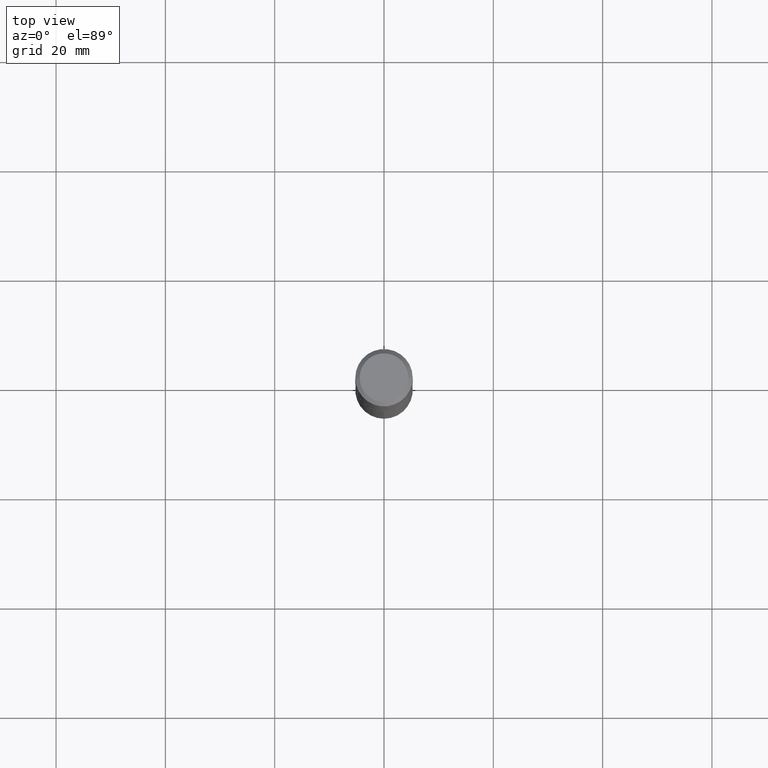
[diagram: clean part render]
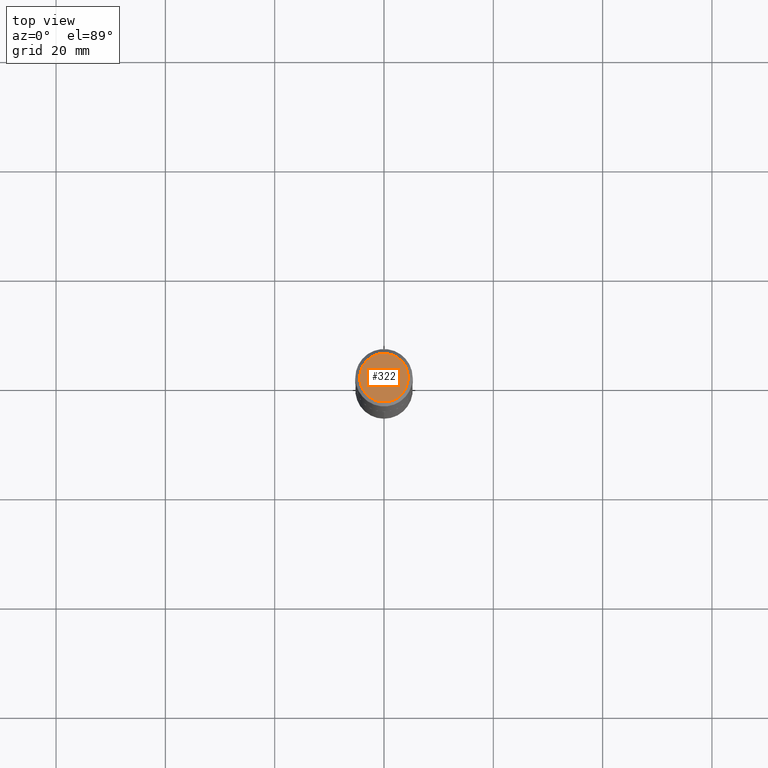
[diagram: same view with one face highlighted and labeled with its STEP entity id]
A machine part, top view. The second image highlights one B-rep face of the part: STEP entity #322.
In plain terms, the highlighted planar face has unit normal (0, -0, -1).
Its self-contained STEP definition (entity closure, byte-faithful):
#6 = CARTESIAN_POINT ( 'NONE',  ( -0.1754499999999999948, 1.279715197719478945E-15, 1.206277097151380300E-18 ) ) ;
#8 = DIRECTION ( 'NONE',  ( 1.000000000000000000, -6.982962677686267499E-15, 4.876214437063800301E-29 ) ) ;
#16 = CARTESIAN_POINT ( 'NONE',  ( -1.474956506360338605E-47, 2.105846987104252615E-33, 6.031385485800694257E-19 ) ) ;
#23 = CIRCLE ( 'NONE', #264, 0.1754499999999999948 ) ;
#35 = EDGE_LOOP ( 'NONE', ( #217, #125 ) ) ;
#40 = CIRCLE ( 'NONE', #68, 0.1754499999999999948 ) ;
#68 = AXIS2_PLACEMENT_3D ( 'NONE', #146, #271, #8 ) ;
#78 = VERTEX_POINT ( 'NONE', #6 ) ;
#125 = ORIENTED_EDGE ( 'NONE', *, *, #234, .T. ) ;
#144 = DIRECTION ( 'NONE',  ( -1.000000000000000000, 6.982962677686265922E-15, -4.876176775795935793E-29 ) ) ;
#146 = CARTESIAN_POINT ( 'NONE',  ( -2.949913012720677210E-47, 4.211693974208505230E-33, 1.206277097160138851E-18 ) ) ;
#217 = ORIENTED_EDGE ( 'NONE', *, *, #227, .T. ) ;
#227 = EDGE_CURVE ( 'NONE', #78, #312, #23, .T. ) ;
#234 = EDGE_CURVE ( 'NONE', #312, #78, #40, .T. ) ;
#263 = CARTESIAN_POINT ( 'NONE',  ( 0.1754499999999999948, -1.365424050843619950E-15, 1.206277097169196885E-18 ) ) ;
#264 = AXIS2_PLACEMENT_3D ( 'NONE', #301, #284, #321 ) ;
#271 = DIRECTION ( 'NONE',  ( -2.445468806185136597E-29, 3.491481338843145583E-15, 1.000000000000000000 ) ) ;
#284 = DIRECTION ( 'NONE',  ( -2.445468806185136597E-29, 3.491481338843145583E-15, 1.000000000000000000 ) ) ;
#295 = PLANE ( 'NONE',  #362 ) ;
#301 = CARTESIAN_POINT ( 'NONE',  ( -2.949913012720677210E-47, 4.211693974208505230E-33, 1.206277097160138851E-18 ) ) ;
#312 = VERTEX_POINT ( 'NONE', #263 ) ;
#321 = DIRECTION ( 'NONE',  ( 1.000000000000000000, -6.982962677686267499E-15, 4.876214437063800301E-29 ) ) ;
#322 = ADVANCED_FACE ( 'NONE', ( #382 ), #295, .F. ) ;
#362 = AXIS2_PLACEMENT_3D ( 'NONE', #16, #378, #144 ) ;
#378 = DIRECTION ( 'NONE',  ( 2.438088387897960049E-29, -3.491481338843145188E-15, -1.000000000000000000 ) ) ;
#382 = FACE_OUTER_BOUND ( 'NONE', #35, .T. ) ;